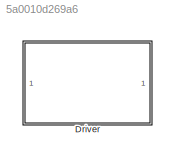
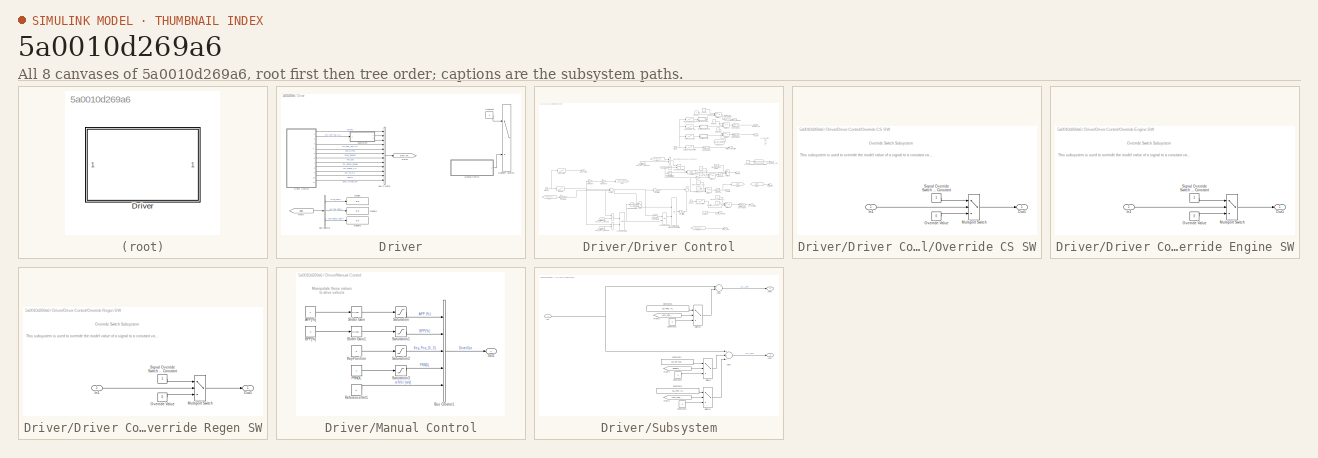
[diagram: thumbnail index - all 8 canvases of the model, root first then tree order]
MODEL slx_5a0010d269a6
KIND library
CONFIG AbsTol = auto
CONFIG EnableMultiTasking = off
CONFIG FixedStep = auto
CONFIG MaxStep = auto
CONFIG MinStep = auto
CONFIG RelTol = 1e-3
CONFIG SampleTimeConstraint = Unconstrained
CONFIG Solver = VariableStepAuto
CONFIG SolverName = VariableStepAuto
CONFIG StartTime = 0.0
CONFIG StopTime = 10.0
BLOCK [SubSystem] Driver
  Ports = []
  RequestExecContextInheritance = off
  Variant = off
BLOCK [BusCreator] Driver/Bus Creator
  DisplayOption = bar
  InheritFromInputs = on
  Inputs = 12
  Ports = [12, 1]
BLOCK [BusSelector] Driver/Bus Selector
  OutputAsBus = off
  OutputSignals = GFD_Light,HV_Chg_Light,Veh_Ready_Light
  Ports = [1, 3]
BLOCK [Constant] Driver/Constant
  Commented = on
  Value = 0
BLOCK [Display] Driver/Display
  Decimation = 1
  Ports = [1]
BLOCK [Display] Driver/Display1
  Decimation = 1
  Ports = [1]
BLOCK [Display] Driver/Display2
  Decimation = 1
  Ports = [1]
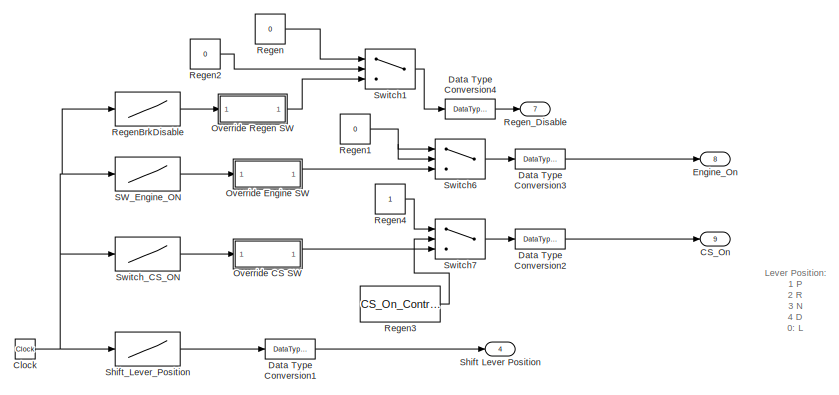
[diagram: Driver/Driver Control - part 1/3, top right region]
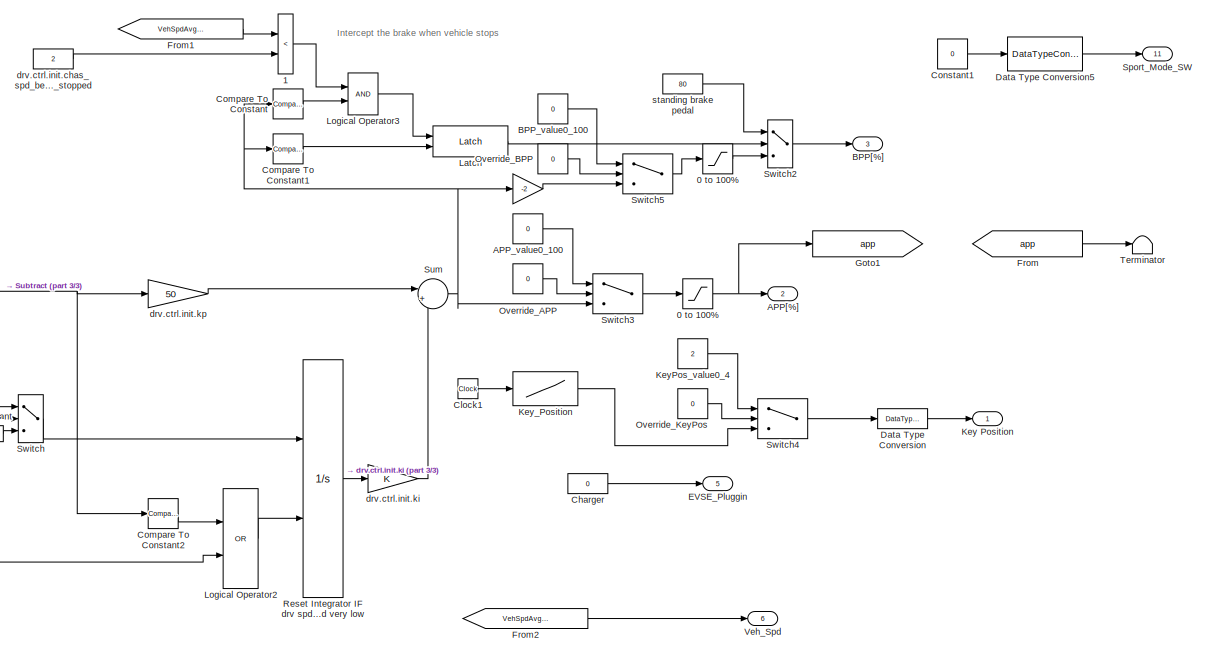
[diagram: Driver/Driver Control - part 2/3, bottom right region]
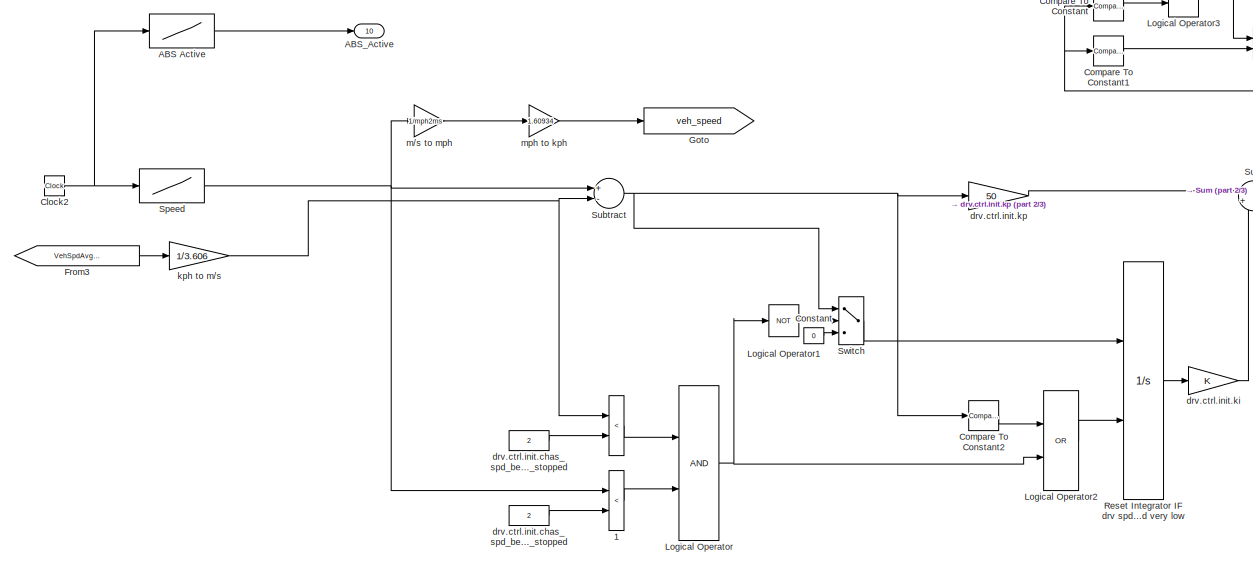
[diagram: Driver/Driver Control - part 3/3, bottom left region]
BLOCK [SubSystem] Driver/Driver Control
  Ports = [0, 11]
  RequestExecContextInheritance = off
  Variant = off
BLOCK [Gain] Driver/Driver Control/ 
  Gain = -2
  OutDataTypeStr = Inherit: Inherit via internal rule
  ParamDataTypeStr = Inherit: Inherit via internal rule
  SaturateOnIntegerOverflow = off
BLOCK [RelationalOperator] Driver/Driver Control/    
  Operator = <
  Ports = [2, 1]
BLOCK [RelationalOperator] Driver/Driver Control/    1
  Operator = <
  Ports = [2, 1]
BLOCK [RelationalOperator] Driver/Driver Control/  1
  Operator = <
  Ports = [2, 1]
BLOCK [Saturate] Driver/Driver Control/0 to 100%
  InputPortMap = u0
  LowerLimit = 0
  Ports = [1, 1]
  UpperLimit = 100
BLOCK [Saturate] Driver/Driver Control/0 to 100% 
  InputPortMap = u0
  LowerLimit = 0
  Ports = [1, 1]
  UpperLimit = 100
BLOCK [Lookup] Driver/Driver Control/ABS Active
  InputValues = time
  SaturateOnIntegerOverflow = off
  Table = ABSEnable
BLOCK [Outport] Driver/Driver Control/ABS_Active
  IconDisplay = Port number
  Port = 10
BLOCK [Outport] Driver/Driver Control/APP[%]
  IconDisplay = Port number
  Port = 2
BLOCK [Constant] Driver/Driver Control/APP_value0_100
  Value = 0
BLOCK [Outport] Driver/Driver Control/BPP[%]
  IconDisplay = Port number
  Port = 3
BLOCK [Constant] Driver/Driver Control/BPP_value0_100
  Value = 0
BLOCK [Outport] Driver/Driver Control/CS_On
  IconDisplay = Port number
  Port = 9
BLOCK [Constant] Driver/Driver Control/Charger
  Value = 0
BLOCK [Clock] Driver/Driver Control/Clock
BLOCK [Clock] Driver/Driver Control/Clock1
BLOCK [Clock] Driver/Driver Control/Clock2
BLOCK [Reference] Driver/Driver Control/Compare To Constant  REF=simulink/Logic and Bit
Operations/Compare
To Constant
  Ports = [1, 1]
  SourceBlock = simulink/Logic and Bit\nOperations/Compare\nTo Constant
  SourceProductBaseCode = SL
  SourceProductName = Simulink
  SourceType = Compare To Constant
BLOCK [Reference] Driver/Driver Control/Compare To Constant1  REF=simulink/Logic and Bit
Operations/Compare
To Constant
  Ports = [1, 1]
  SourceBlock = simulink/Logic and Bit\nOperations/Compare\nTo Constant
  SourceProductBaseCode = SL
  SourceProductName = Simulink
  SourceType = Compare To Constant
BLOCK [Reference] Driver/Driver Control/Compare To Constant2  REF=simulink/Logic and Bit
Operations/Compare
To Constant
  Ports = [1, 1]
  SourceBlock = simulink/Logic and Bit\nOperations/Compare\nTo Constant
  SourceProductBaseCode = SL
  SourceProductName = Simulink
  SourceType = Compare To Constant
BLOCK [Constant] Driver/Driver Control/Constant
  Value = 0
BLOCK [Constant] Driver/Driver Control/Constant1
  Value = 0
BLOCK [DataTypeConversion] Driver/Driver Control/Data Type Conversion
  OutDataTypeStr = int8
  RndMeth = Floor
  SaturateOnIntegerOverflow = off
BLOCK [DataTypeConversion] Driver/Driver Control/Data Type Conversion1
  OutDataTypeStr = int8
  RndMeth = Floor
  SaturateOnIntegerOverflow = off
BLOCK [DataTypeConversion] Driver/Driver Control/Data Type Conversion2
  OutDataTypeStr = boolean
  RndMeth = Floor
  SaturateOnIntegerOverflow = off
BLOCK [DataTypeConversion] Driver/Driver Control/Data Type Conversion3
  OutDataTypeStr = boolean
  RndMeth = Floor
  SaturateOnIntegerOverflow = off
BLOCK [DataTypeConversion] Driver/Driver Control/Data Type Conversion4
  OutDataTypeStr = boolean
  RndMeth = Floor
  SaturateOnIntegerOverflow = off
BLOCK [DataTypeConversion] Driver/Driver Control/Data Type Conversion5
  RndMeth = Floor
  SaturateOnIntegerOverflow = off
BLOCK [Outport] Driver/Driver Control/EVSE_Pluggin
  IconDisplay = Port number
  Port = 5
BLOCK [Outport] Driver/Driver Control/Engine_On
  IconDisplay = Port number
  Port = 8
BLOCK [From] Driver/Driver Control/From
  GotoTag = app
  TagVisibility = global
BLOCK [From] Driver/Driver Control/From1
  GotoTag = VehSpdAvgDrvn
  TagVisibility = global
BLOCK [From] Driver/Driver Control/From2
  GotoTag = VehSpdAvgDrvn
  TagVisibility = global
BLOCK [From] Driver/Driver Control/From3
  GotoTag = VehSpdAvgDrvn
  TagVisibility = global
BLOCK [Goto] Driver/Driver Control/Goto
  GotoTag = veh_speed
  TagVisibility = global
BLOCK [Goto] Driver/Driver Control/Goto1
  GotoTag = app
  TagVisibility = global
BLOCK [Outport] Driver/Driver Control/Key Position
  IconDisplay = Port number
BLOCK [Constant] Driver/Driver Control/KeyPos_value0_4
  Value = 2
BLOCK [Lookup] Driver/Driver Control/Key_Position
  InputValues = time
  SaturateOnIntegerOverflow = off
  Table = KeyPosition
BLOCK [Reference] Driver/Driver Control/Latch  REF=Utility/Latch
  Ports = [2, 1]
  SourceBlock = Utility/Latch
  SourceType = SubSystem
BLOCK [Logic] Driver/Driver Control/Logical Operator
  AllPortsSameDT = off
  OutDataTypeStr = boolean
  Ports = [2, 1]
BLOCK [Logic] Driver/Driver Control/Logical Operator1
  AllPortsSameDT = off
  Operator = NOT
  OutDataTypeStr = boolean
  Ports = [1, 1]
BLOCK [Logic] Driver/Driver Control/Logical Operator2
  AllPortsSameDT = off
  Operator = OR
  OutDataTypeStr = boolean
  Ports = [2, 1]
BLOCK [Logic] Driver/Driver Control/Logical Operator3
  AllPortsSameDT = off
  OutDataTypeStr = boolean
  Ports = [2, 1]
BLOCK [SubSystem] Driver/Driver Control/Override CS SW
  Ports = [1, 1]
  RequestExecContextInheritance = off
  Variant = off
BLOCK [Inport] Driver/Driver Control/Override CS SW/In1
  IconDisplay = Port number
BLOCK [MultiPortSwitch] Driver/Driver Control/Override CS SW/Multiport Switch
  DataPortOrder = Zero-based contiguous
  InputSameDT = off
  Inputs = 2
  Ports = [3, 1]
  SaturateOnIntegerOverflow = off
  zeroidx = on
BLOCK [Outport] Driver/Driver Control/Override CS SW/Out1
  IconDisplay = Port number
BLOCK [Constant] Driver/Driver Control/Override CS SW/Override Value
  OutDataTypeStr = double
  Value = 0
BLOCK [Constant] Driver/Driver Control/Override CS SW/Signal Override Switch 0 = Use Model 1 = Use Constant
BLOCK [SubSystem] Driver/Driver Control/Override Engine SW
  Ports = [1, 1]
  RequestExecContextInheritance = off
  Variant = off
BLOCK [Inport] Driver/Driver Control/Override Engine SW/In1
  IconDisplay = Port number
BLOCK [MultiPortSwitch] Driver/Driver Control/Override Engine SW/Multiport Switch
  DataPortOrder = Zero-based contiguous
  InputSameDT = off
  Inputs = 2
  Ports = [3, 1]
  SaturateOnIntegerOverflow = off
  zeroidx = on
BLOCK [Outport] Driver/Driver Control/Override Engine SW/Out1
  IconDisplay = Port number
BLOCK [Constant] Driver/Driver Control/Override Engine SW/Override Value
  OutDataTypeStr = double
  Value = 0
BLOCK [Constant] Driver/Driver Control/Override Engine SW/Signal Override Switch 0 = Use Model 1 = Use Constant
BLOCK [SubSystem] Driver/Driver Control/Override Regen SW
  Ports = [1, 1]
  RequestExecContextInheritance = off
  Variant = off
BLOCK [Inport] Driver/Driver Control/Override Regen SW/In1
  IconDisplay = Port number
BLOCK [MultiPortSwitch] Driver/Driver Control/Override Regen SW/Multiport Switch
  DataPortOrder = Zero-based contiguous
  InputSameDT = off
  Inputs = 2
  Ports = [3, 1]
  SaturateOnIntegerOverflow = off
  zeroidx = on
BLOCK [Outport] Driver/Driver Control/Override Regen SW/Out1
  IconDisplay = Port number
BLOCK [Constant] Driver/Driver Control/Override Regen SW/Override Value
  OutDataTypeStr = double
  Value = 0
BLOCK [Constant] Driver/Driver Control/Override Regen SW/Signal Override Switch 0 = Use Model 1 = Use Constant
BLOCK [Constant] Driver/Driver Control/Override_APP
  Value = 0
BLOCK [Constant] Driver/Driver Control/Override_BPP
  Value = 0
BLOCK [Constant] Driver/Driver Control/Override_KeyPos
  Value = 0
BLOCK [Constant] Driver/Driver Control/Regen
  Value = 0
BLOCK [Constant] Driver/Driver Control/Regen1
  Value = 0
BLOCK [Constant] Driver/Driver Control/Regen2
  Value = 0
BLOCK [Constant] Driver/Driver Control/Regen3
  Value = CS_On_Control
BLOCK [Constant] Driver/Driver Control/Regen4
BLOCK [Lookup] Driver/Driver Control/RegenBrkDisable
  InputValues = time
  SaturateOnIntegerOverflow = off
  Table = RegenBrkDisable
BLOCK [Outport] Driver/Driver Control/Regen_Disable
  IconDisplay = Port number
  Port = 7
BLOCK [Integrator] Driver/Driver Control/Reset Integrator IF drv spd dmd very low AND AND current vehicle speed very low
  ExternalReset = either
  Ports = [2, 1]
BLOCK [Lookup] Driver/Driver Control/SW_Engine_ON
  InputValues = time
  SaturateOnIntegerOverflow = off
  Table = SW_Engine_ON
BLOCK [Outport] Driver/Driver Control/Shift Lever Position
  IconDisplay = Port number
  Port = 4
BLOCK [Lookup] Driver/Driver Control/Shift_Lever_Position
  InputValues = time
  SaturateOnIntegerOverflow = off
  Table = ShiftLeverPosition
BLOCK [Lookup] Driver/Driver Control/Speed
  InputValues = time
  SaturateOnIntegerOverflow = off
  Table = Speed
BLOCK [Outport] Driver/Driver Control/Sport_Mode_SW
  IconDisplay = Port number
  Port = 11
BLOCK [Sum] Driver/Driver Control/Subtract
  InputSameDT = off
  Inputs = +-
  OutDataTypeStr = Inherit: Inherit via internal rule
  Ports = [2, 1]
  SaturateOnIntegerOverflow = off
BLOCK [Sum] Driver/Driver Control/Sum
  IconShape = round
  Inputs = |++
  Ports = [2, 1]
BLOCK [Switch] Driver/Driver Control/Switch
  InputSameDT = off
  SaturateOnIntegerOverflow = off
  Threshold = 0.5
BLOCK [Switch] Driver/Driver Control/Switch1
  Criteria = u2 > Threshold
  InputSameDT = off
  SaturateOnIntegerOverflow = off
BLOCK [Switch] Driver/Driver Control/Switch2
  InputSameDT = off
  SaturateOnIntegerOverflow = off
  Threshold = 0.5
BLOCK [Switch] Driver/Driver Control/Switch3
  Criteria = u2 > Threshold
  InputSameDT = off
  SaturateOnIntegerOverflow = off
BLOCK [Switch] Driver/Driver Control/Switch4
  Criteria = u2 > Threshold
  InputSameDT = off
  SaturateOnIntegerOverflow = off
BLOCK [Switch] Driver/Driver Control/Switch5
  Criteria = u2 > Threshold
  InputSameDT = off
  SaturateOnIntegerOverflow = off
BLOCK [Switch] Driver/Driver Control/Switch6
  Criteria = u2 > Threshold
  InputSameDT = off
  SaturateOnIntegerOverflow = off
BLOCK [Switch] Driver/Driver Control/Switch7
  Criteria = u2 > Threshold
  InputSameDT = off
  SaturateOnIntegerOverflow = off
BLOCK [Lookup] Driver/Driver Control/Switch_CS_ON
  InputValues = time
  SaturateOnIntegerOverflow = off
  Table = SW_CS_ON
BLOCK [Terminator] Driver/Driver Control/Terminator
BLOCK [Outport] Driver/Driver Control/Veh_Spd
  IconDisplay = Port number
  Port = 6
BLOCK [Constant] Driver/Driver Control/drv.ctrl.init.chas_spd_below_chas_stopped 
  Value = 2
BLOCK [Gain] Driver/Driver Control/drv.ctrl.init.ki
BLOCK [Gain] Driver/Driver Control/drv.ctrl.init.kp
  Gain = 50
BLOCK [Gain] Driver/Driver Control/kph to m//s
  Gain = 1/3.606
BLOCK [Gain] Driver/Driver Control/m//s to mph
  Gain = 1/mph2ms
  OutDataTypeStr = Inherit: Inherit via internal rule
  ParamDataTypeStr = Inherit: Inherit via internal rule
  SaturateOnIntegerOverflow = off
BLOCK [Gain] Driver/Driver Control/mph to kph
  Gain = 1.60934
  OutDataTypeStr = Inherit: Inherit via internal rule
  ParamDataTypeStr = Inherit: Inherit via internal rule
  SaturateOnIntegerOverflow = off
BLOCK [Constant] Driver/Driver Control/standing brake pedal
  Value = 80
BLOCK [From] Driver/From1
  GotoTag = Digital
  TagVisibility = global
BLOCK [Goto] Driver/Goto2
  GotoTag = Driver_Request
  TagVisibility = global
BLOCK [SubSystem] Driver/Manual Control
  Commented = on
  Ports = [0, 1]
  RequestExecContextInheritance = off
  Variant = off
BLOCK [Constant] Driver/Manual Control/APP[%]
BLOCK [Constant] Driver/Manual Control/BPP[%]
  Value = -1
BLOCK [BusCreator] Driver/Manual Control/Bus Creator1
  DisplayOption = bar
  InheritFromInputs = on
  Inputs = 5
  Ports = [5, 1]
BLOCK [Constant] Driver/Manual Control/KeyPosition
  Value = 3
BLOCK [Outport] Driver/Manual Control/Out1
  IconDisplay = Port number
BLOCK [Constant] Driver/Manual Control/PRNDL
  Value = 4
BLOCK [Constant] Driver/Manual Control/ReferenceVel1
  Value = 0
BLOCK [Saturate] Driver/Manual Control/Saturation
  InputPortMap = u0
  LowerLimit = 0
  Ports = [1, 1]
  UpperLimit = 100
BLOCK [Saturate] Driver/Manual Control/Saturation1
  InputPortMap = u0
  LowerLimit = -100
  Ports = [1, 1]
  UpperLimit = 0
BLOCK [Saturate] Driver/Manual Control/Saturation2
  InputPortMap = u0
  LowerLimit = 0
  Ports = [1, 1]
  UpperLimit = 3
BLOCK [Saturate] Driver/Manual Control/Saturation3
  InputPortMap = u0
  LowerLimit = 0
  Ports = [1, 1]
  UpperLimit = 4
BLOCK [Reference] Driver/Manual Control/Slider Gain  REF=simulink/Math
Operations/Slider
Gain
  Ports = [1, 1]
  SourceBlock = simulink/Math\nOperations/Slider\nGain
  SourceProductBaseCode = SL
  SourceProductName = Simulink
  SourceType = Slider Gain
BLOCK [Reference] Driver/Manual Control/Slider Gain1  REF=simulink/Math
Operations/Slider
Gain
  Ports = [1, 1]
  SourceBlock = simulink/Math\nOperations/Slider\nGain
  SourceProductBaseCode = SL
  SourceProductName = Simulink
  SourceType = Slider Gain
BLOCK [MultiPortSwitch] Driver/Multiport Switch1
  Commented = on
  DataPortOrder = Zero-based contiguous
  InputSameDT = off
  Inputs = 2
  Ports = [3, 1]
  SaturateOnIntegerOverflow = off
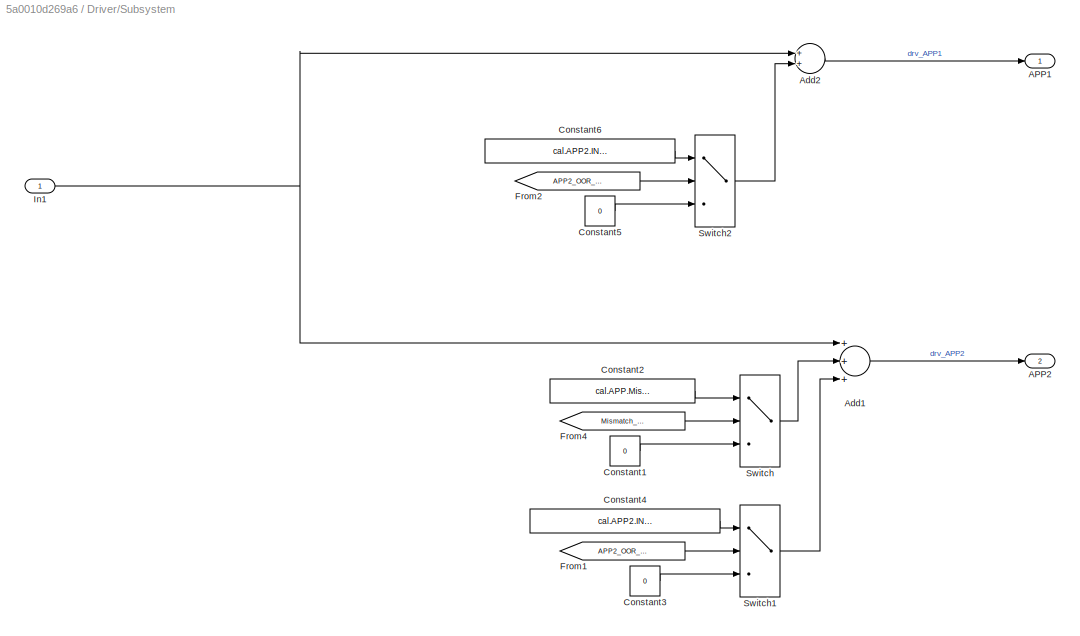
BLOCK [SubSystem] Driver/Subsystem
  Ports = [1, 2]
  RequestExecContextInheritance = off
  Variant = off
BLOCK [Outport] Driver/Subsystem/APP1
  IconDisplay = Port number
BLOCK [Outport] Driver/Subsystem/APP2
  IconDisplay = Port number
  Port = 2
BLOCK [Sum] Driver/Subsystem/Add1
  InputSameDT = off
  Inputs = +++
  OutDataTypeStr = Inherit: Inherit via internal rule
  Ports = [3, 1]
  SaturateOnIntegerOverflow = off
BLOCK [Sum] Driver/Subsystem/Add2
  InputSameDT = off
  OutDataTypeStr = Inherit: Inherit via internal rule
  Ports = [2, 1]
  SaturateOnIntegerOverflow = off
BLOCK [Constant] Driver/Subsystem/Constant1
  Value = 0
BLOCK [Constant] Driver/Subsystem/Constant2
  Value = cal.APP.Mismatch_Value+0.1
BLOCK [Constant] Driver/Subsystem/Constant3
  Value = 0
BLOCK [Constant] Driver/Subsystem/Constant4
  Value = cal.APP2.IN_Max_SC_Prcnt+1
BLOCK [Constant] Driver/Subsystem/Constant5
  Value = 0
BLOCK [Constant] Driver/Subsystem/Constant6
  Value = cal.APP2.IN_Max_SC_Prcnt+1
BLOCK [From] Driver/Subsystem/From1
  GotoTag = APP2_OOR_ON
BLOCK [From] Driver/Subsystem/From2
  GotoTag = APP2_OOR_ON
BLOCK [From] Driver/Subsystem/From4
  GotoTag = Mismatch_APP_ON
BLOCK [Inport] Driver/Subsystem/In1
  IconDisplay = Port number
BLOCK [Switch] Driver/Subsystem/Switch
  InputSameDT = off
  SaturateOnIntegerOverflow = off
  Threshold = 1
BLOCK [Switch] Driver/Subsystem/Switch1
  InputSameDT = off
  SaturateOnIntegerOverflow = off
  Threshold = 1
BLOCK [Switch] Driver/Subsystem/Switch2
  InputSameDT = off
  SaturateOnIntegerOverflow = off
  Threshold = 1
ANNOTATION Driver/Driver Control: Intercept the brake when vehicle stops
ANNOTATION Driver/Driver Control: Lever Position: 1 P 2 R 3 N 4 D 0: L
ANNOTATION Driver/Driver Control/Override CS SW: Override Switch Subsystem
ANNOTATION Driver/Driver Control/Override CS SW: This subsystem is used to override the model value of a signal to a constant value
ANNOTATION Driver/Driver Control/Override Engine SW: Override Switch Subsystem
ANNOTATION Driver/Driver Control/Override Engine SW: This subsystem is used to override the model value of a signal to a constant value
ANNOTATION Driver/Driver Control/Override Regen SW: Override Switch Subsystem
ANNOTATION Driver/Driver Control/Override Regen SW: This subsystem is used to override the model value of a signal to a constant value
ANNOTATION Driver/Manual Control: Manipulate these values to drive vehicle
LINE Driver/Bus Creator:1 -> Driver/Goto2:1
LINE Driver/Bus Selector:1 -> Driver/Display:1
LINE Driver/Bus Selector:2 -> Driver/Display1:1
LINE Driver/Bus Selector:3 -> Driver/Display2:1
LINE Driver/Constant:1 -> Driver/Multiport Switch1:1
LINE Driver/Driver Control/    1:1 -> Driver/Driver Control/Logical Operator3:1
LINE Driver/Driver Control/    :1 -> Driver/Driver Control/Logical Operator:1
LINE Driver/Driver Control/  1:1 -> Driver/Driver Control/Logical Operator:2
LINE Driver/Driver Control/ :1 -> Driver/Driver Control/Switch5:3
LINE Driver/Driver Control/0 to 100% :1 -> Driver/Driver Control/Switch2:3
NET Driver/Driver Control/0 to 100%:1 -> Driver/Driver Control/APP[%]:1, Driver/Driver Control/Goto1:1
LINE Driver/Driver Control/ABS Active:1 -> Driver/Driver Control/ABS_Active:1
LINE Driver/Driver Control/APP_value0_100:1 -> Driver/Driver Control/Switch3:1
LINE Driver/Driver Control/BPP_value0_100:1 -> Driver/Driver Control/Switch5:1
LINE Driver/Driver Control/Charger:1 -> Driver/Driver Control/EVSE_Pluggin:1
LINE Driver/Driver Control/Clock1:1 -> Driver/Driver Control/Key_Position:1
NET Driver/Driver Control/Clock2:1 -> Driver/Driver Control/ABS Active:1, Driver/Driver Control/Speed:1
NET Driver/Driver Control/Clock:1 -> Driver/Driver Control/RegenBrkDisable:1, Driver/Driver Control/SW_Engine_ON:1, Driver/Driver Control/Shift_Lever_Position:1, Driver/Driver Control/Switch_CS_ON:1
LINE Driver/Driver Control/Compare To Constant1:1 -> Driver/Driver Control/Latch:2
LINE Driver/Driver Control/Compare To Constant2:1 -> Driver/Driver Control/Logical Operator2:1
LINE Driver/Driver Control/Compare To Constant:1 -> Driver/Driver Control/Logical Operator3:2
LINE Driver/Driver Control/Constant1:1 -> Driver/Driver Control/Data Type Conversion5:1
LINE Driver/Driver Control/Constant:1 -> Driver/Driver Control/Switch:3
LINE Driver/Driver Control/Data Type Conversion1:1 -> Driver/Driver Control/Shift Lever Position:1
LINE Driver/Driver Control/Data Type Conversion2:1 -> Driver/Driver Control/CS_On:1
LINE Driver/Driver Control/Data Type Conversion3:1 -> Driver/Driver Control/Engine_On:1
LINE Driver/Driver Control/Data Type Conversion4:1 -> Driver/Driver Control/Regen_Disable:1
LINE Driver/Driver Control/Data Type Conversion5:1 -> Driver/Driver Control/Sport_Mode_SW:1
LINE Driver/Driver Control/Data Type Conversion:1 -> Driver/Driver Control/Key Position:1
LINE Driver/Driver Control/From1:1 -> Driver/Driver Control/    1:1
LINE Driver/Driver Control/From2:1 -> Driver/Driver Control/Veh_Spd:1
LINE Driver/Driver Control/From3:1 -> Driver/Driver Control/kph to m//s:1
LINE Driver/Driver Control/From:1 -> Driver/Driver Control/Terminator:1
LINE Driver/Driver Control/KeyPos_value0_4:1 -> Driver/Driver Control/Switch4:1
LINE Driver/Driver Control/Key_Position:1 -> Driver/Driver Control/Switch4:3
LINE Driver/Driver Control/Latch:1 -> Driver/Driver Control/Switch2:2
LINE Driver/Driver Control/Logical Operator1:1 -> Driver/Driver Control/Switch:2
LINE Driver/Driver Control/Logical Operator2:1 -> Driver/Driver Control/Reset Integrator IF drv spd dmd very low AND AND current vehicle speed very low:2
LINE Driver/Driver Control/Logical Operator3:1 -> Driver/Driver Control/Latch:1
NET Driver/Driver Control/Logical Operator:1 -> Driver/Driver Control/Logical Operator1:1, Driver/Driver Control/Logical Operator2:2
LINE Driver/Driver Control/Override CS SW/In1:1 -> Driver/Driver Control/Override CS SW/Multiport Switch:2
LINE Driver/Driver Control/Override CS SW/Multiport Switch:1 -> Driver/Driver Control/Override CS SW/Out1:1
LINE Driver/Driver Control/Override CS SW/Override Value:1 -> Driver/Driver Control/Override CS SW/Multiport Switch:3
LINE Driver/Driver Control/Override CS SW/Signal Override Switch 0 = Use Model 1 = Use Constant:1 -> Driver/Driver Control/Override CS SW/Multiport Switch:1
LINE Driver/Driver Control/Override CS SW:1 -> Driver/Driver Control/Switch7:3
LINE Driver/Driver Control/Override Engine SW/In1:1 -> Driver/Driver Control/Override Engine SW/Multiport Switch:2
LINE Driver/Driver Control/Override Engine SW/Multiport Switch:1 -> Driver/Driver Control/Override Engine SW/Out1:1
LINE Driver/Driver Control/Override Engine SW/Override Value:1 -> Driver/Driver Control/Override Engine SW/Multiport Switch:3
LINE Driver/Driver Control/Override Engine SW/Signal Override Switch 0 = Use Model 1 = Use Constant:1 -> Driver/Driver Control/Override Engine SW/Multiport Switch:1
LINE Driver/Driver Control/Override Engine SW:1 -> Driver/Driver Control/Switch6:3
LINE Driver/Driver Control/Override Regen SW/In1:1 -> Driver/Driver Control/Override Regen SW/Multiport Switch:2
LINE Driver/Driver Control/Override Regen SW/Multiport Switch:1 -> Driver/Driver Control/Override Regen SW/Out1:1
LINE Driver/Driver Control/Override Regen SW/Override Value:1 -> Driver/Driver Control/Override Regen SW/Multiport Switch:3
LINE Driver/Driver Control/Override Regen SW/Signal Override Switch 0 = Use Model 1 = Use Constant:1 -> Driver/Driver Control/Override Regen SW/Multiport Switch:1
LINE Driver/Driver Control/Override Regen SW:1 -> Driver/Driver Control/Switch1:3
LINE Driver/Driver Control/Override_APP:1 -> Driver/Driver Control/Switch3:2
LINE Driver/Driver Control/Override_BPP:1 -> Driver/Driver Control/Switch5:2
LINE Driver/Driver Control/Override_KeyPos:1 -> Driver/Driver Control/Switch4:2
NET Driver/Driver Control/Regen1:1 -> Driver/Driver Control/Switch6:1, Driver/Driver Control/Switch6:2
LINE Driver/Driver Control/Regen2:1 -> Driver/Driver Control/Switch1:2
LINE Driver/Driver Control/Regen3:1 -> Driver/Driver Control/Switch7:2
LINE Driver/Driver Control/Regen4:1 -> Driver/Driver Control/Switch7:1
LINE Driver/Driver Control/Regen:1 -> Driver/Driver Control/Switch1:1
LINE Driver/Driver Control/RegenBrkDisable:1 -> Driver/Driver Control/Override Regen SW:1
LINE Driver/Driver Control/Reset Integrator IF drv spd dmd very low AND AND current vehicle speed very low:1 -> Driver/Driver Control/drv.ctrl.init.ki:1
LINE Driver/Driver Control/SW_Engine_ON:1 -> Driver/Driver Control/Override Engine SW:1
LINE Driver/Driver Control/Shift_Lever_Position:1 -> Driver/Driver Control/Data Type Conversion1:1
NET Driver/Driver Control/Speed:1 -> Driver/Driver Control/  1:1, Driver/Driver Control/Subtract:1, Driver/Driver Control/m//s to mph:1
NET Driver/Driver Control/Subtract:1 -> Driver/Driver Control/Compare To Constant2:1, Driver/Driver Control/Switch:1, Driver/Driver Control/drv.ctrl.init.kp:1
NET Driver/Driver Control/Sum:1 -> Driver/Driver Control/ :1, Driver/Driver Control/Compare To Constant1:1, Driver/Driver Control/Compare To Constant:1, Driver/Driver Control/Switch3:3
LINE Driver/Driver Control/Switch1:1 -> Driver/Driver Control/Data Type Conversion4:1
LINE Driver/Driver Control/Switch2:1 -> Driver/Driver Control/BPP[%]:1
LINE Driver/Driver Control/Switch3:1 -> Driver/Driver Control/0 to 100%:1
LINE Driver/Driver Control/Switch4:1 -> Driver/Driver Control/Data Type Conversion:1
LINE Driver/Driver Control/Switch5:1 -> Driver/Driver Control/0 to 100% :1
LINE Driver/Driver Control/Switch6:1 -> Driver/Driver Control/Data Type Conversion3:1
LINE Driver/Driver Control/Switch7:1 -> Driver/Driver Control/Data Type Conversion2:1
LINE Driver/Driver Control/Switch:1 -> Driver/Driver Control/Reset Integrator IF drv spd dmd very low AND AND current vehicle speed very low:1
LINE Driver/Driver Control/Switch_CS_ON:1 -> Driver/Driver Control/Override CS SW:1
NET Driver/Driver Control/drv.ctrl.init.chas_spd_below_chas_stopped :1 -> Driver/Driver Control/    1:2, Driver/Driver Control/    :2, Driver/Driver Control/  1:2
LINE Driver/Driver Control/drv.ctrl.init.ki:1 -> Driver/Driver Control/Sum:2
LINE Driver/Driver Control/drv.ctrl.init.kp:1 -> Driver/Driver Control/Sum:1
NET Driver/Driver Control/kph to m//s:1 -> Driver/Driver Control/    :1, Driver/Driver Control/Subtract:2
LINE Driver/Driver Control/m//s to mph:1 -> Driver/Driver Control/mph to kph:1
LINE Driver/Driver Control/mph to kph:1 -> Driver/Driver Control/Goto:1
LINE Driver/Driver Control/standing brake pedal:1 -> Driver/Driver Control/Switch2:1
LINE Driver/Driver Control:1 -> Driver/Bus Creator:1
LINE Driver/Driver Control:10 -> Driver/Bus Creator:11
LINE Driver/Driver Control:11 -> Driver/Bus Creator:12
LINE Driver/Driver Control:2 -> Driver/Subsystem:1
LINE Driver/Driver Control:3 -> Driver/Bus Creator:4
LINE Driver/Driver Control:4 -> Driver/Bus Creator:5
LINE Driver/Driver Control:5 -> Driver/Bus Creator:6
LINE Driver/Driver Control:6 -> Driver/Bus Creator:7
LINE Driver/Driver Control:7 -> Driver/Bus Creator:8
LINE Driver/Driver Control:8 -> Driver/Bus Creator:9
LINE Driver/Driver Control:9 -> Driver/Bus Creator:10
LINE Driver/From1:1 -> Driver/Bus Selector:1
LINE Driver/Manual Control/APP[%]:1 -> Driver/Manual Control/Slider Gain:1
LINE Driver/Manual Control/BPP[%]:1 -> Driver/Manual Control/Slider Gain1:1
LINE Driver/Manual Control/Bus Creator1:1 -> Driver/Manual Control/Out1:1
LINE Driver/Manual Control/KeyPosition:1 -> Driver/Manual Control/Saturation2:1
LINE Driver/Manual Control/PRNDL:1 -> Driver/Manual Control/Saturation3:1
LINE Driver/Manual Control/ReferenceVel1:1 -> Driver/Manual Control/Bus Creator1:5
LINE Driver/Manual Control/Saturation1:1 -> Driver/Manual Control/Bus Creator1:2
LINE Driver/Manual Control/Saturation2:1 -> Driver/Manual Control/Bus Creator1:3
LINE Driver/Manual Control/Saturation3:1 -> Driver/Manual Control/Bus Creator1:4
LINE Driver/Manual Control/Saturation:1 -> Driver/Manual Control/Bus Creator1:1
LINE Driver/Manual Control/Slider Gain1:1 -> Driver/Manual Control/Saturation1:1
LINE Driver/Manual Control/Slider Gain:1 -> Driver/Manual Control/Saturation:1
LINE Driver/Manual Control:1 -> Driver/Multiport Switch1:3
LINE Driver/Subsystem/Add1:1 -> Driver/Subsystem/APP2:1
LINE Driver/Subsystem/Add2:1 -> Driver/Subsystem/APP1:1
LINE Driver/Subsystem/Constant1:1 -> Driver/Subsystem/Switch:3
LINE Driver/Subsystem/Constant2:1 -> Driver/Subsystem/Switch:1
LINE Driver/Subsystem/Constant3:1 -> Driver/Subsystem/Switch1:3
LINE Driver/Subsystem/Constant4:1 -> Driver/Subsystem/Switch1:1
LINE Driver/Subsystem/Constant5:1 -> Driver/Subsystem/Switch2:3
LINE Driver/Subsystem/Constant6:1 -> Driver/Subsystem/Switch2:1
LINE Driver/Subsystem/From1:1 -> Driver/Subsystem/Switch1:2
LINE Driver/Subsystem/From2:1 -> Driver/Subsystem/Switch2:2
LINE Driver/Subsystem/From4:1 -> Driver/Subsystem/Switch:2
NET Driver/Subsystem/In1:1 -> Driver/Subsystem/Add1:1, Driver/Subsystem/Add2:1
LINE Driver/Subsystem/Switch1:1 -> Driver/Subsystem/Add1:3
LINE Driver/Subsystem/Switch2:1 -> Driver/Subsystem/Add2:2
LINE Driver/Subsystem/Switch:1 -> Driver/Subsystem/Add1:2
LINE Driver/Subsystem:1 -> Driver/Bus Creator:2
LINE Driver/Subsystem:2 -> Driver/Bus Creator:3
note: NET lines group one-source signal fan-out (src -> all destinations, sorted); 1:1 wires keep LINE
